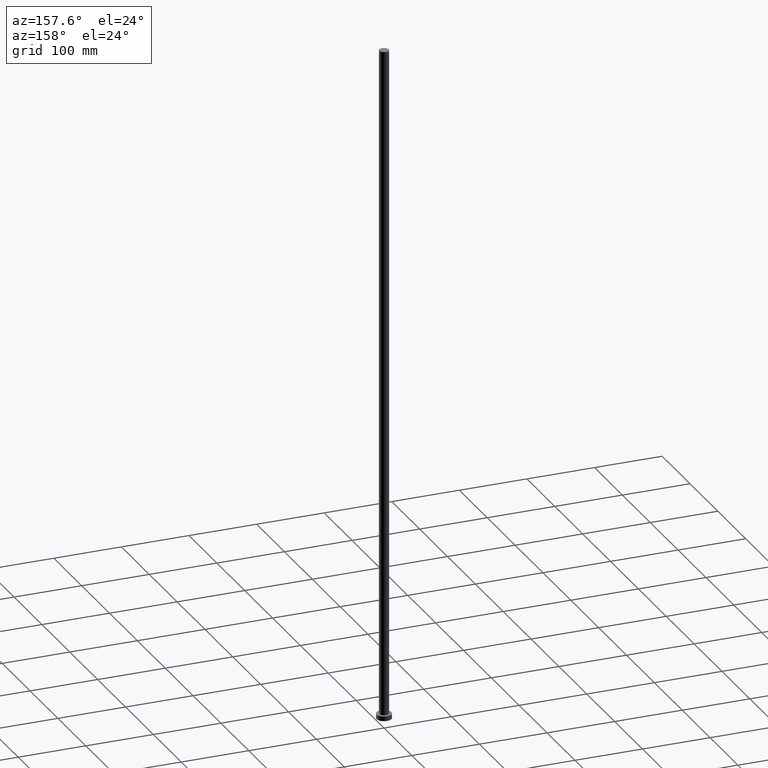
[diagram: clean part render]
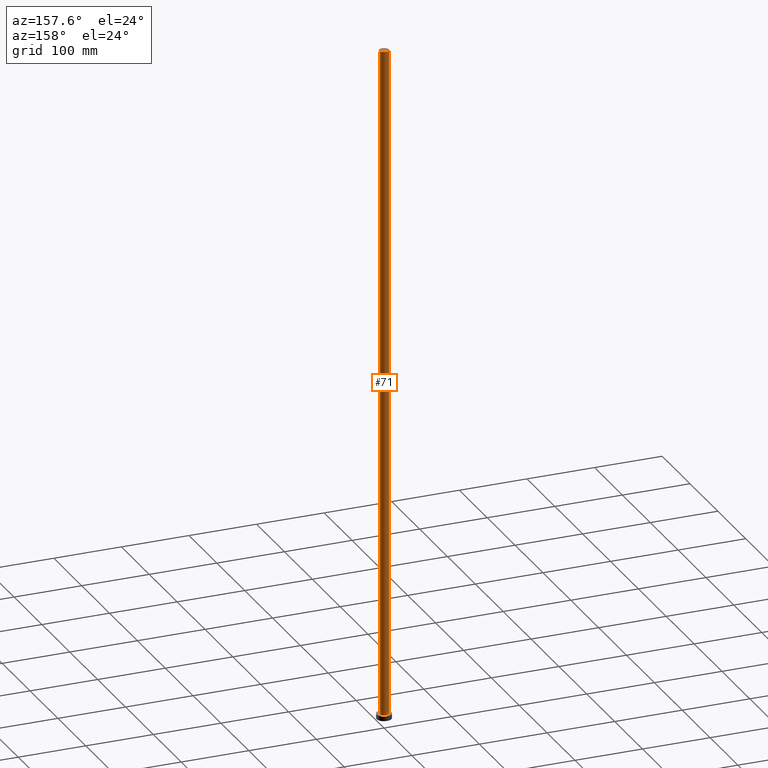
[diagram: same view with one face highlighted and labeled with its STEP entity id]
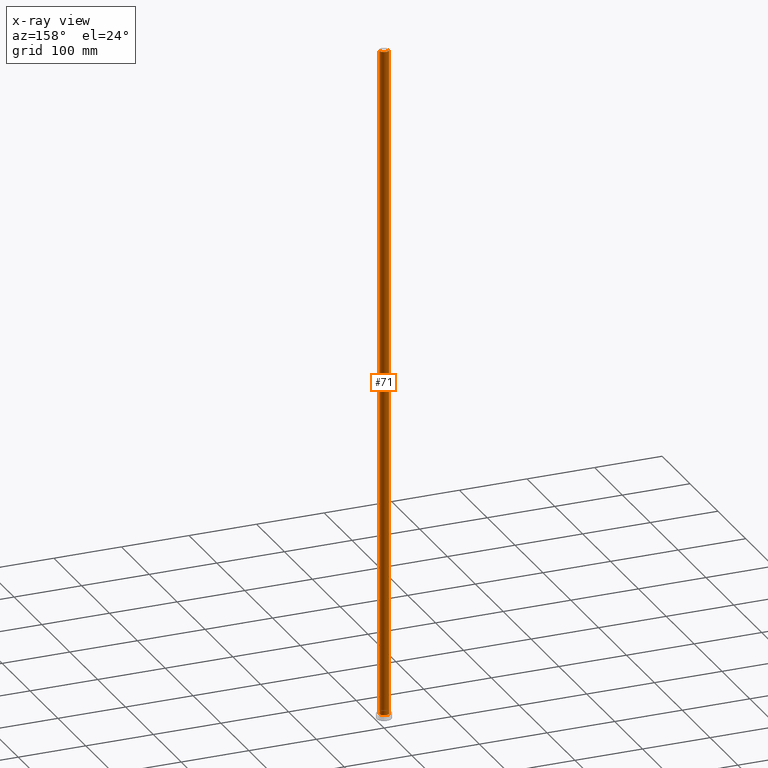
[diagram: x-ray of the same camera — body ghosted, the highlighted face saturated]
A machine part, auxiliary view. The second image highlights one B-rep face of the part: STEP entity #71.
The next image is the same camera in x-ray: the body ghosted, the highlighted face saturated — about 0% of this face is hidden behind the body in this view.
In plain terms, the highlighted cylindrical surface (edge-blend (fillet) strip) has radius 7 mm, axis along (-0, -0, -1).
Its self-contained STEP definition (entity closure, byte-faithful):
#4 = EDGE_CURVE ( 'NONE', #222, #65, #75, .T. ) ;
#16 = EDGE_CURVE ( 'NONE', #222, #175, #111, .T. ) ;
#24 = ORIENTED_EDGE ( 'NONE', *, *, #207, .T. ) ;
#26 = VECTOR ( 'NONE', #167, 1000.000000000000000 ) ;
#29 = VERTEX_POINT ( 'NONE', #187 ) ;
#32 = FACE_OUTER_BOUND ( 'NONE', #93, .T. ) ;
#34 = CARTESIAN_POINT ( 'NONE',  ( 7.000000000000000888, 8.572527594031474176E-16, 7.000000000000000000 ) ) ;
#38 = VECTOR ( 'NONE', #213, 1000.000000000000000 ) ;
#49 = DIRECTION ( 'NONE',  ( -1.000000000000000000, 0.000000000000000000, 0.000000000000000000 ) ) ;
#65 = VERTEX_POINT ( 'NONE', #34 ) ;
#71 = ADVANCED_FACE ( 'NONE', ( #32 ), #244, .T. ) ;
#74 = DIRECTION ( 'NONE',  ( -0.000000000000000000, -0.000000000000000000, -1.000000000000000000 ) ) ;
#75 = LINE ( 'NONE', #106, #26 ) ;
#82 = CARTESIAN_POINT ( 'NONE',  ( 7.000000000000000888, 8.572527594031474176E-16, 1000.000000000000000 ) ) ;
#83 = LINE ( 'NONE', #152, #38 ) ;
#93 = EDGE_LOOP ( 'NONE', ( #206, #186, #24, #196 ) ) ;
#99 = DIRECTION ( 'NONE',  ( 1.000000000000000000, 0.000000000000000000, 0.000000000000000000 ) ) ;
#106 = CARTESIAN_POINT ( 'NONE',  ( 7.000000000000000888, 8.572527594031474176E-16, 1000.000000000000000 ) ) ;
#111 = CIRCLE ( 'NONE', #179, 7.000000000000000888 ) ;
#114 = CARTESIAN_POINT ( 'NONE',  ( -7.000000000000000888, 0.000000000000000000, 1000.000000000000000 ) ) ;
#126 = CARTESIAN_POINT ( 'NONE',  ( 0.000000000000000000, 0.000000000000000000, 1000.000000000000000 ) ) ;
#152 = CARTESIAN_POINT ( 'NONE',  ( -7.000000000000000888, 0.000000000000000000, 1000.000000000000000 ) ) ;
#163 = AXIS2_PLACEMENT_3D ( 'NONE', #227, #74, #49 ) ;
#167 = DIRECTION ( 'NONE',  ( -0.000000000000000000, -0.000000000000000000, -1.000000000000000000 ) ) ;
#168 = CARTESIAN_POINT ( 'NONE',  ( 0.000000000000000000, 0.000000000000000000, 7.000000000000000000 ) ) ;
#175 = VERTEX_POINT ( 'NONE', #114 ) ;
#179 = AXIS2_PLACEMENT_3D ( 'NONE', #126, #183, #209 ) ;
#183 = DIRECTION ( 'NONE',  ( 0.000000000000000000, 0.000000000000000000, 1.000000000000000000 ) ) ;
#186 = ORIENTED_EDGE ( 'NONE', *, *, #4, .T. ) ;
#187 = CARTESIAN_POINT ( 'NONE',  ( -7.000000000000000888, 0.000000000000000000, 7.000000000000000000 ) ) ;
#191 = CIRCLE ( 'NONE', #205, 7.000000000000000888 ) ;
#194 = DIRECTION ( 'NONE',  ( 0.000000000000000000, 0.000000000000000000, 1.000000000000000000 ) ) ;
#196 = ORIENTED_EDGE ( 'NONE', *, *, #236, .F. ) ;
#205 = AXIS2_PLACEMENT_3D ( 'NONE', #168, #194, #99 ) ;
#206 = ORIENTED_EDGE ( 'NONE', *, *, #16, .F. ) ;
#207 = EDGE_CURVE ( 'NONE', #65, #29, #191, .T. ) ;
#209 = DIRECTION ( 'NONE',  ( 1.000000000000000000, 0.000000000000000000, 0.000000000000000000 ) ) ;
#213 = DIRECTION ( 'NONE',  ( -0.000000000000000000, -0.000000000000000000, -1.000000000000000000 ) ) ;
#222 = VERTEX_POINT ( 'NONE', #82 ) ;
#227 = CARTESIAN_POINT ( 'NONE',  ( 0.000000000000000000, 0.000000000000000000, 1000.000000000000000 ) ) ;
#236 = EDGE_CURVE ( 'NONE', #175, #29, #83, .T. ) ;
#244 = CYLINDRICAL_SURFACE ( 'NONE', #163, 7.000000000000000888 ) ;